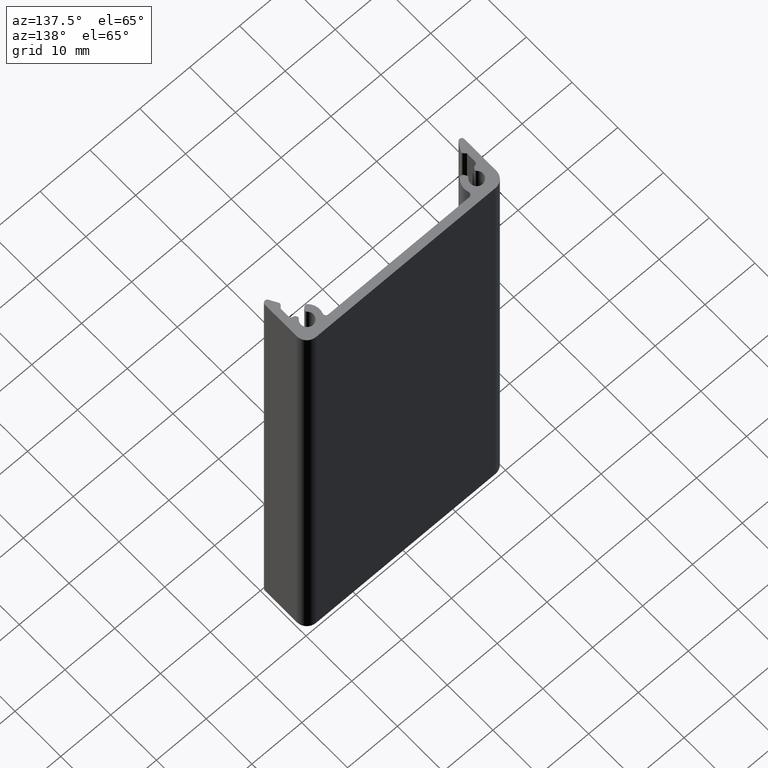
[diagram: clean part render]
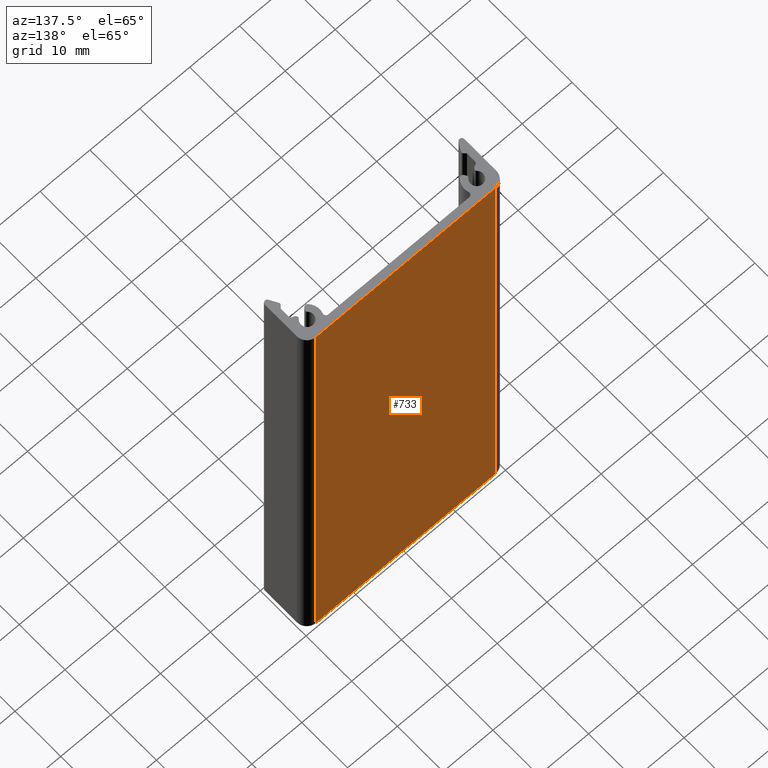
[diagram: same view with one face highlighted and labeled with its STEP entity id]
A machine part, auxiliary view. The second image highlights one B-rep face of the part: STEP entity #733.
In plain terms, the highlighted planar face has unit normal (-0, 1, 0).
Its self-contained STEP definition (entity closure, byte-faithful):
#29=PLANE('',#817);
#67=FACE_OUTER_BOUND('',#105,.T.);
#105=EDGE_LOOP('',(#635,#636,#637,#638));
#167=LINE('',#1255,#231);
#168=LINE('',#1262,#232);
#169=LINE('',#1264,#233);
#170=LINE('',#1266,#234);
#231=VECTOR('',#1031,100.);
#232=VECTOR('',#1040,100.);
#233=VECTOR('',#1043,36.);
#234=VECTOR('',#1046,36.);
#347=VERTEX_POINT('',#1252);
#348=VERTEX_POINT('',#1254);
#349=VERTEX_POINT('',#1258);
#350=VERTEX_POINT('',#1260);
#452=EDGE_CURVE('',#347,#348,#167,.T.);
#456=EDGE_CURVE('',#349,#350,#168,.T.);
#457=EDGE_CURVE('',#348,#350,#169,.T.);
#458=EDGE_CURVE('',#347,#349,#170,.T.);
#635=ORIENTED_EDGE('',*,*,#456,.T.);
#636=ORIENTED_EDGE('',*,*,#457,.F.);
#637=ORIENTED_EDGE('',*,*,#452,.F.);
#638=ORIENTED_EDGE('',*,*,#458,.T.);
#733=ADVANCED_FACE('',(#67),#29,.T.);
#817=AXIS2_PLACEMENT_3D('',#1265,#1044,#1045);
#1031=DIRECTION('',(0.,0.,-1.));
#1040=DIRECTION('',(0.,0.,-1.));
#1043=DIRECTION('',(1.,4.33257765707378E-16,0.));
#1044=DIRECTION('center_axis',(-4.33257765707378E-16,1.,0.));
#1045=DIRECTION('ref_axis',(-1.,-4.33257765707378E-16,0.));
#1046=DIRECTION('',(1.,4.33257765707378E-16,0.));
#1252=CARTESIAN_POINT('',(-18.0000000000001,5.55111512312578E-16,100.));
#1254=CARTESIAN_POINT('',(-18.0000000000001,5.55111512312578E-16,0.));
#1255=CARTESIAN_POINT('',(-18.0000000000001,-3.33066907387547E-15,0.));
#1258=CARTESIAN_POINT('',(17.9999999999999,7.21644966006352E-15,100.));
#1260=CARTESIAN_POINT('',(17.9999999999999,7.21644966006352E-15,0.));
#1262=CARTESIAN_POINT('',(17.9999999999999,1.22124532708767E-14,0.));
#1264=CARTESIAN_POINT('',(10.25,8.88178419700125E-15,0.));
#1265=CARTESIAN_POINT('Origin',(20.5,1.33226762955019E-14,0.));
#1266=CARTESIAN_POINT('',(10.25,8.88178419700125E-15,100.));